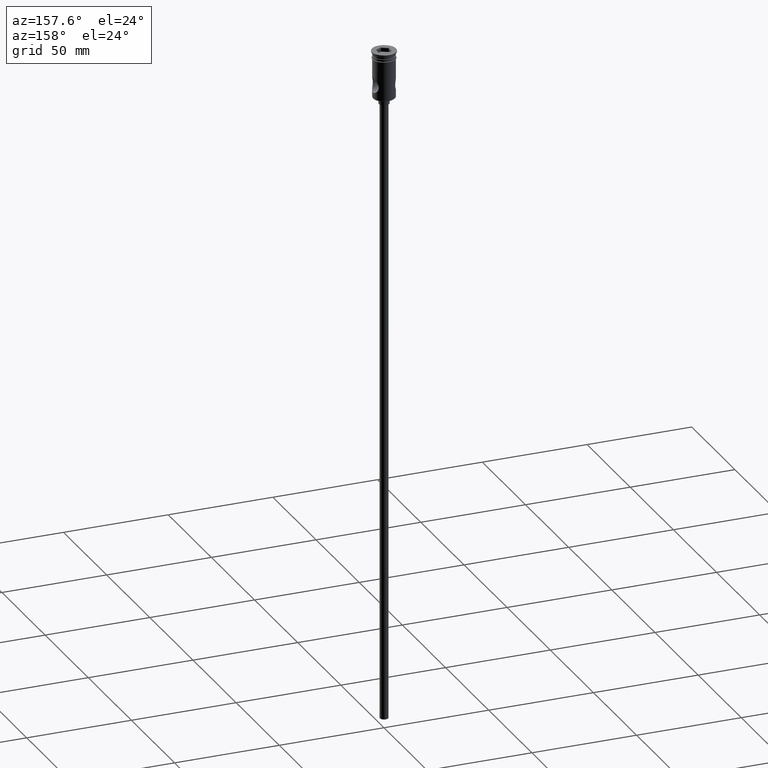
[diagram: clean part render]
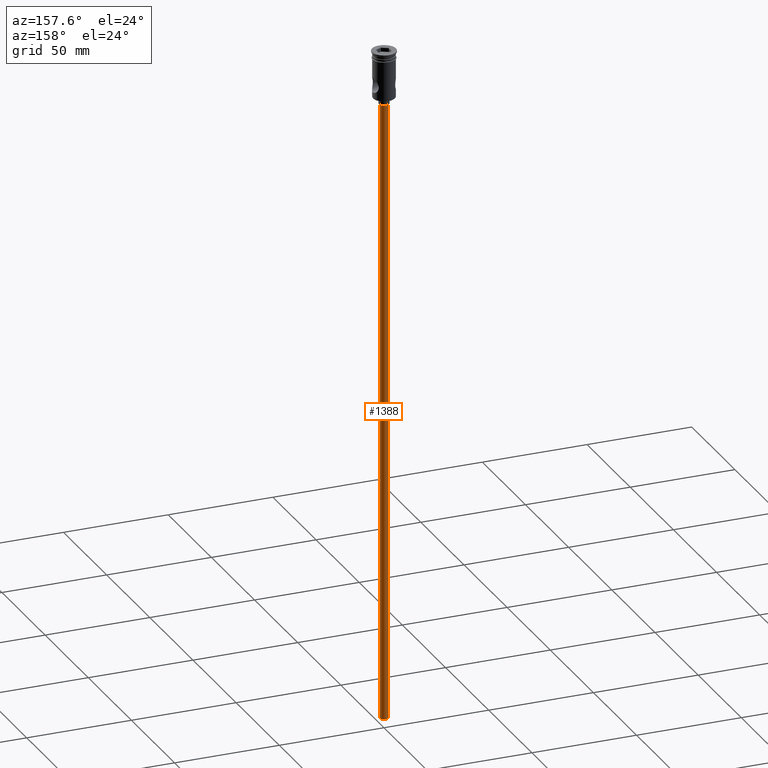
[diagram: same view with one face highlighted and labeled with its STEP entity id]
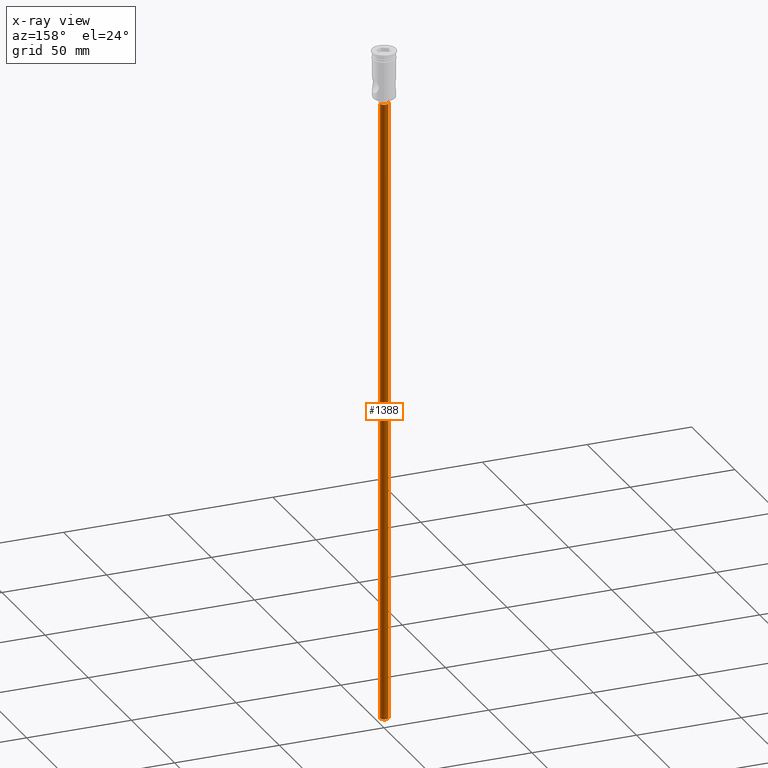
[diagram: x-ray of the same camera — body ghosted, the highlighted face saturated]
A machine part, auxiliary view. The second image highlights one B-rep face of the part: STEP entity #1388.
The next image is the same camera in x-ray: the body ghosted, the highlighted face saturated — about 0% of this face is hidden behind the body in this view.
In plain terms, the highlighted cylindrical surface (edge-blend (fillet) strip) has radius 2 mm, axis along (-0, -0, 1).
Its self-contained STEP definition (entity closure, byte-faithful):
#43 = AXIS2_PLACEMENT_3D ( 'NONE', #482, #491, #1179 ) ;
#95 = LINE ( 'NONE', #325, #1436 ) ;
#114 = DIRECTION ( 'NONE',  ( -0.000000000000000000, -0.000000000000000000, 1.000000000000000000 ) ) ;
#147 = ORIENTED_EDGE ( 'NONE', *, *, #1428, .F. ) ;
#189 = EDGE_CURVE ( 'NONE', #509, #1178, #1006, .T. ) ;
#223 = DIRECTION ( 'NONE',  ( -0.000000000000000000, -0.000000000000000000, 1.000000000000000000 ) ) ;
#224 = CARTESIAN_POINT ( 'NONE',  ( -2.000000000000000000, 2.449293598294706414E-16, -322.5000000000000000 ) ) ;
#231 = DIRECTION ( 'NONE',  ( 1.000000000000000000, 0.000000000000000000, 0.000000000000000000 ) ) ;
#299 = DIRECTION ( 'NONE',  ( 0.000000000000000000, 0.000000000000000000, -1.000000000000000000 ) ) ;
#325 = CARTESIAN_POINT ( 'NONE',  ( 2.000000000000000000, 0.000000000000000000, -322.5000000000000000 ) ) ;
#346 = FACE_OUTER_BOUND ( 'NONE', #561, .T. ) ;
#394 = CARTESIAN_POINT ( 'NONE',  ( -2.000000000000000000, 2.449293598294706414E-16, -25.50000000000000000 ) ) ;
#482 = CARTESIAN_POINT ( 'NONE',  ( 0.000000000000000000, 0.000000000000000000, -25.50000000000000000 ) ) ;
#491 = DIRECTION ( 'NONE',  ( 0.000000000000000000, 0.000000000000000000, -1.000000000000000000 ) ) ;
#498 = EDGE_CURVE ( 'NONE', #1040, #653, #1432, .T. ) ;
#509 = VERTEX_POINT ( 'NONE', #394 ) ;
#538 = CYLINDRICAL_SURFACE ( 'NONE', #1295, 2.000000000000000000 ) ;
#561 = EDGE_LOOP ( 'NONE', ( #1314, #1159, #1143, #147 ) ) ;
#577 = CARTESIAN_POINT ( 'NONE',  ( 2.000000000000000000, 0.000000000000000000, -25.50000000000000000 ) ) ;
#621 = CARTESIAN_POINT ( 'NONE',  ( -2.000000000000000000, 2.449293598294706414E-16, -322.5000000000000000 ) ) ;
#625 = DIRECTION ( 'NONE',  ( -1.000000000000000000, 0.000000000000000000, 0.000000000000000000 ) ) ;
#653 = VERTEX_POINT ( 'NONE', #1104 ) ;
#722 = EDGE_CURVE ( 'NONE', #1040, #509, #1321, .T. ) ;
#785 = DIRECTION ( 'NONE',  ( -0.000000000000000000, -0.000000000000000000, 1.000000000000000000 ) ) ;
#1006 = CIRCLE ( 'NONE', #43, 2.000000000000000000 ) ;
#1040 = VERTEX_POINT ( 'NONE', #621 ) ;
#1104 = CARTESIAN_POINT ( 'NONE',  ( 2.000000000000000000, 0.000000000000000000, -322.5000000000000000 ) ) ;
#1128 = AXIS2_PLACEMENT_3D ( 'NONE', #1416, #299, #625 ) ;
#1143 = ORIENTED_EDGE ( 'NONE', *, *, #189, .T. ) ;
#1159 = ORIENTED_EDGE ( 'NONE', *, *, #722, .T. ) ;
#1178 = VERTEX_POINT ( 'NONE', #577 ) ;
#1179 = DIRECTION ( 'NONE',  ( -1.000000000000000000, 0.000000000000000000, 0.000000000000000000 ) ) ;
#1295 = AXIS2_PLACEMENT_3D ( 'NONE', #1327, #223, #231 ) ;
#1314 = ORIENTED_EDGE ( 'NONE', *, *, #498, .F. ) ;
#1321 = LINE ( 'NONE', #224, #1410 ) ;
#1327 = CARTESIAN_POINT ( 'NONE',  ( 0.000000000000000000, 0.000000000000000000, -322.5000000000000000 ) ) ;
#1388 = ADVANCED_FACE ( 'NONE', ( #346 ), #538, .T. ) ;
#1410 = VECTOR ( 'NONE', #114, 1000.000000000000000 ) ;
#1416 = CARTESIAN_POINT ( 'NONE',  ( 0.000000000000000000, 0.000000000000000000, -322.5000000000000000 ) ) ;
#1428 = EDGE_CURVE ( 'NONE', #653, #1178, #95, .T. ) ;
#1432 = CIRCLE ( 'NONE', #1128, 2.000000000000000000 ) ;
#1436 = VECTOR ( 'NONE', #785, 1000.000000000000000 ) ;